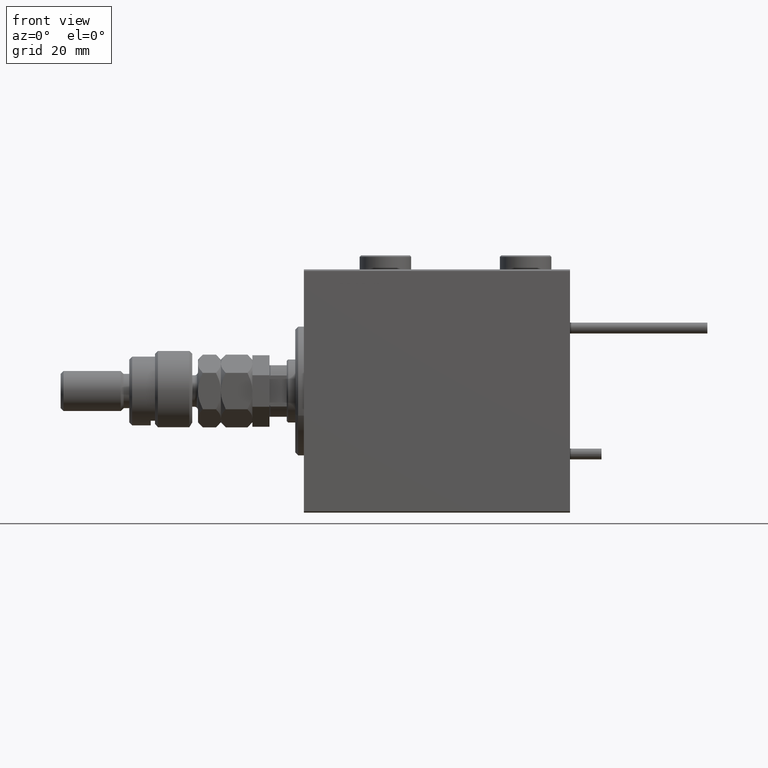
[diagram: clean part render]
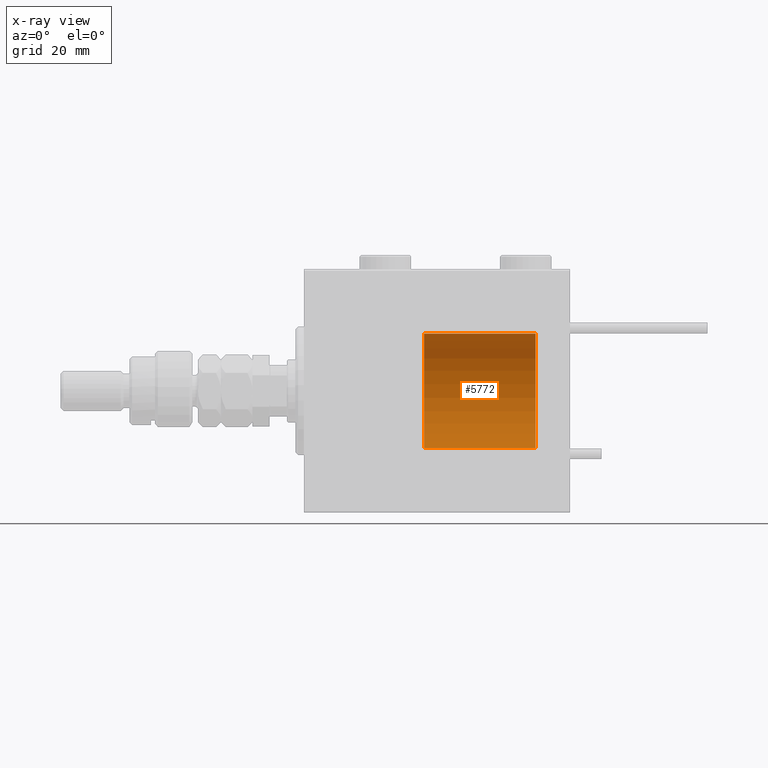
[diagram: x-ray — body ghosted, one internal face saturated and labeled with its STEP entity id]
A machine part, front view, then the same camera in x-ray: the body is ghosted and one INTERNAL B-rep face — a face not visible from any outside direction — is saturated and labeled: STEP entity #5772.
In plain terms, the highlighted cylindrical surface (partial cylindrical patch) has radius 20 mm, axis along (1, -0, -0).
Its self-contained STEP definition (entity closure, byte-faithful):
#3541 = DIRECTION ( 'NONE',  ( -0.000000000000000000, -0.000000000000000000, -1.000000000000000000 ) ) ;
#4744 = ORIENTED_EDGE ( 'NONE', *, *, #25189, .T. ) ;
#4918 = VERTEX_POINT ( 'NONE', #38067 ) ;
#4998 = CARTESIAN_POINT ( 'NONE',  ( 20.00000000000000000, 2.449293598294706513E-15, 39.00000000000000000 ) ) ;
#5772 = ADVANCED_FACE ( 'NONE', ( #32104 ), #41189, .T. ) ;
#8425 = DIRECTION ( 'NONE',  ( 0.000000000000000000, 0.000000000000000000, 1.000000000000000000 ) ) ;
#8588 = VECTOR ( 'NONE', #45079, 1000.000000000000000 ) ;
#11071 = EDGE_CURVE ( 'NONE', #19377, #22763, #24995, .T. ) ;
#11101 = LINE ( 'NONE', #23214, #44706 ) ;
#13897 = CIRCLE ( 'NONE', #37597, 20.00000000000000000 ) ;
#16217 = DIRECTION ( 'NONE',  ( 0.000000000000000000, 0.000000000000000000, 1.000000000000000000 ) ) ;
#16444 = CARTESIAN_POINT ( 'NONE',  ( 20.00000000000000000, 2.449293598294706513E-15, 0.000000000000000000 ) ) ;
#16764 = CARTESIAN_POINT ( 'NONE',  ( 0.000000000000000000, 0.000000000000000000, 39.00000000000000000 ) ) ;
#19216 = CARTESIAN_POINT ( 'NONE',  ( -20.00000000000000000, 0.000000000000000000, 39.00000000000000000 ) ) ;
#19377 = VERTEX_POINT ( 'NONE', #4998 ) ;
#19460 = CARTESIAN_POINT ( 'NONE',  ( 0.000000000000000000, 0.000000000000000000, 39.00000000000000000 ) ) ;
#21224 = EDGE_CURVE ( 'NONE', #22763, #4918, #36799, .T. ) ;
#22763 = VERTEX_POINT ( 'NONE', #41364 ) ;
#23214 = CARTESIAN_POINT ( 'NONE',  ( 20.00000000000000000, 2.449293598294706513E-15, 39.00000000000000000 ) ) ;
#23741 = VERTEX_POINT ( 'NONE', #16444 ) ;
#24995 = CIRCLE ( 'NONE', #30296, 20.00000000000000000 ) ;
#25189 = EDGE_CURVE ( 'NONE', #19377, #23741, #11101, .T. ) ;
#25775 = EDGE_CURVE ( 'NONE', #23741, #4918, #13897, .T. ) ;
#27985 = DIRECTION ( 'NONE',  ( -1.000000000000000000, 0.000000000000000000, 0.000000000000000000 ) ) ;
#28694 = ORIENTED_EDGE ( 'NONE', *, *, #11071, .F. ) ;
#30296 = AXIS2_PLACEMENT_3D ( 'NONE', #16764, #16217, #33534 ) ;
#30906 = AXIS2_PLACEMENT_3D ( 'NONE', #19460, #3541, #27985 ) ;
#32104 = FACE_OUTER_BOUND ( 'NONE', #45418, .T. ) ;
#33534 = DIRECTION ( 'NONE',  ( 1.000000000000000000, 0.000000000000000000, 0.000000000000000000 ) ) ;
#33661 = ORIENTED_EDGE ( 'NONE', *, *, #21224, .F. ) ;
#36799 = LINE ( 'NONE', #19216, #8588 ) ;
#37597 = AXIS2_PLACEMENT_3D ( 'NONE', #45831, #8425, #45564 ) ;
#38067 = CARTESIAN_POINT ( 'NONE',  ( -20.00000000000000000, 0.000000000000000000, 0.000000000000000000 ) ) ;
#39975 = DIRECTION ( 'NONE',  ( -0.000000000000000000, -0.000000000000000000, -1.000000000000000000 ) ) ;
#41189 = CYLINDRICAL_SURFACE ( 'NONE', #30906, 20.00000000000000000 ) ;
#41364 = CARTESIAN_POINT ( 'NONE',  ( -20.00000000000000000, 0.000000000000000000, 39.00000000000000000 ) ) ;
#44706 = VECTOR ( 'NONE', #39975, 1000.000000000000000 ) ;
#45079 = DIRECTION ( 'NONE',  ( -0.000000000000000000, -0.000000000000000000, -1.000000000000000000 ) ) ;
#45418 = EDGE_LOOP ( 'NONE', ( #28694, #4744, #47624, #33661 ) ) ;
#45564 = DIRECTION ( 'NONE',  ( 1.000000000000000000, 0.000000000000000000, 0.000000000000000000 ) ) ;
#45831 = CARTESIAN_POINT ( 'NONE',  ( 0.000000000000000000, 0.000000000000000000, 0.000000000000000000 ) ) ;
#47624 = ORIENTED_EDGE ( 'NONE', *, *, #25775, .T. ) ;